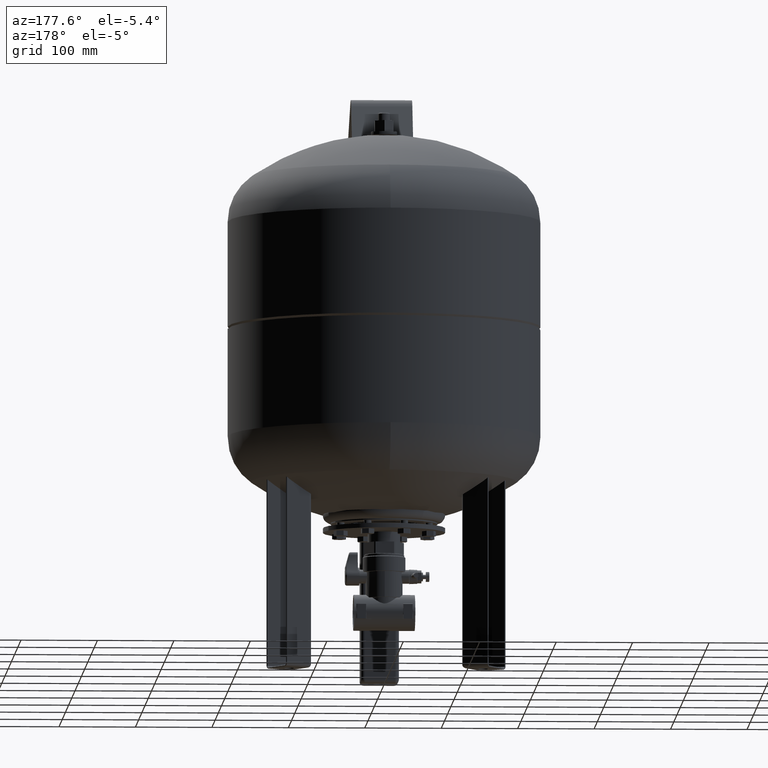
[diagram: clean part render]
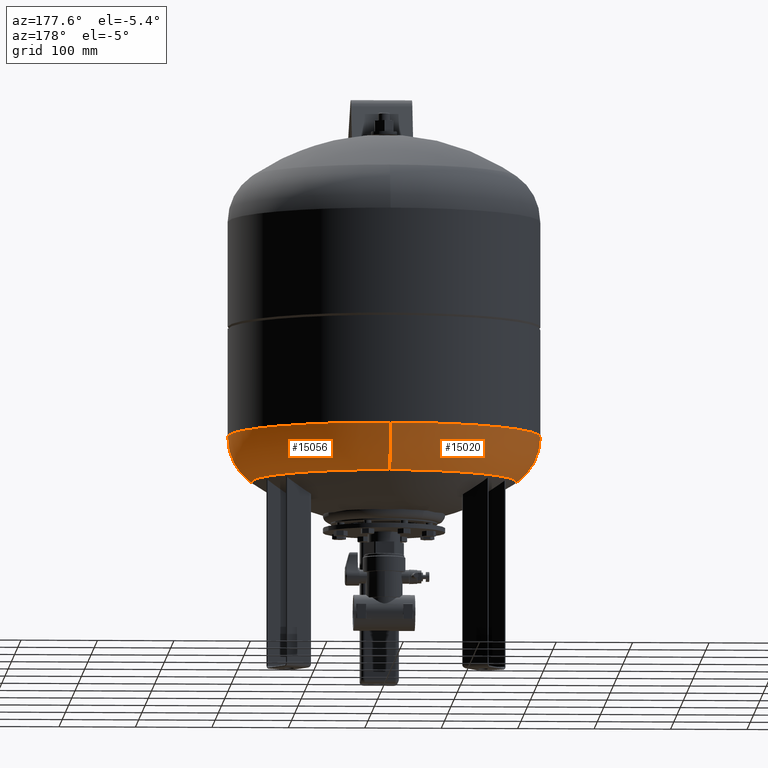
[diagram: same view with one multi-face feature highlighted, each face labeled with its STEP entity id]
A machine part, auxiliary view. The highlighted faces form ONE feature: a constant-radius fillet chain: 2 tangent blend faces with common blend radius 72.5 mm. The faces share edges in the B-rep.
Their STEP definitions:
[1] entity #15020 (Torus):
#14925=CARTESIAN_POINT('',(-204.500000000000000,1.562778E-016,311.149263340968050));
#14926=VERTEX_POINT('',#14925);
#14950=CARTESIAN_POINT('',(-2.097077E-014,204.500000000000000,311.149263340968100));
#14951=VERTEX_POINT('',#14950);
#14959=CARTESIAN_POINT('',(3.012668E-017,1.562778E-016,311.149263340968050));
#14960=DIRECTION('',(0.0,0.0,1.0));
#14961=DIRECTION('',(-1.0,0.0,0.0));
#14962=AXIS2_PLACEMENT_3D('',#14959,#14960,#14961);
#14963=CIRCLE('',#14962,204.500000000000000);
#14964=EDGE_CURVE('',#14951,#14926,#14963,.T.);
#14969=CARTESIAN_POINT('',(4.072433E-015,1.562778E-016,311.149263340968100));
#14970=DIRECTION('',(-3.541246E-017,-1.836970E-016,1.0));
#14971=DIRECTION('',(0.0,-1.0,0.0));
#14972=AXIS2_PLACEMENT_3D('',#14969,#14970,#14971);
#14973=TOROIDAL_SURFACE('',#14972,132.000000000000060,72.500000000000000);
#14974=CARTESIAN_POINT('',(4.072433E-015,-204.500000000000000,311.149263340967990));
#14975=VERTEX_POINT('',#14974);
#14976=CARTESIAN_POINT('',(6.174921E-015,-173.608695652173960,251.777835481055830));
#14977=VERTEX_POINT('',#14976);
#14978=CARTESIAN_POINT('',(4.072433E-015,-132.000000000000060,311.149263340968050));
#14979=DIRECTION('',(1.0,0.0,0.0));
#14980=DIRECTION('',(0.0,-1.0,0.0));
#14981=AXIS2_PLACEMENT_3D('',#14978,#14979,#14980);
#14982=CIRCLE('',#14981,72.500000000000000);
#14983=EDGE_CURVE('',#14975,#14977,#14982,.T.);
#14984=ORIENTED_EDGE('',*,*,#14983,.F.);
#14985=CARTESIAN_POINT('',(3.012668E-017,1.562778E-016,311.149263340968050));
#14986=DIRECTION('',(0.0,0.0,1.0));
#14987=DIRECTION('',(-1.0,0.0,0.0));
#14988=AXIS2_PLACEMENT_3D('',#14985,#14986,#14987);
#14989=CIRCLE('',#14988,204.500000000000000);
#14990=EDGE_CURVE('',#14926,#14975,#14989,.T.);
#14991=ORIENTED_EDGE('',*,*,#14990,.F.);
#14992=ORIENTED_EDGE('',*,*,#14964,.F.);
#14993=CARTESIAN_POINT('',(-1.508531E-014,173.608695652173960,251.777835481055920));
#14994=VERTEX_POINT('',#14993);
#14995=CARTESIAN_POINT('',(-1.209237E-014,132.000000000000060,311.149263340968160));
#14996=DIRECTION('',(-1.0,0.0,0.0));
#14997=DIRECTION('',(0.0,1.0,0.0));
#14998=AXIS2_PLACEMENT_3D('',#14995,#14996,#14997);
#14999=CIRCLE('',#14998,72.500000000000000);
#15000=EDGE_CURVE('',#14951,#14994,#14999,.T.);
#15001=ORIENTED_EDGE('',*,*,#15000,.T.);
#15002=CARTESIAN_POINT('',(-173.608695652173960,1.106263E-014,251.777835481055830));
#15003=VERTEX_POINT('',#15002);
#15004=CARTESIAN_POINT('',(2.132615E-015,1.106263E-014,251.777835481055860));
#15005=DIRECTION('',(0.0,0.0,1.0));
#15006=DIRECTION('',(-1.0,0.0,0.0));
#15007=AXIS2_PLACEMENT_3D('',#15004,#15005,#15006);
#15008=CIRCLE('',#15007,173.608695652173960);
#15009=EDGE_CURVE('',#14994,#15003,#15008,.T.);
#15010=ORIENTED_EDGE('',*,*,#15009,.T.);
#15011=CARTESIAN_POINT('',(2.132615E-015,1.106263E-014,251.777835481055860));
#15012=DIRECTION('',(0.0,0.0,1.0));
#15013=DIRECTION('',(-1.0,0.0,0.0));
#15014=AXIS2_PLACEMENT_3D('',#15011,#15012,#15013);
#15015=CIRCLE('',#15014,173.608695652173960);
#15016=EDGE_CURVE('',#15003,#14977,#15015,.T.);
#15017=ORIENTED_EDGE('',*,*,#15016,.T.);
#15018=EDGE_LOOP('',(#14984,#14991,#14992,#15001,#15010,#15017));
#15019=FACE_OUTER_BOUND('',#15018,.T.);
#15020=ADVANCED_FACE('',(#15019),#14973,.T.);
[2] entity #15056 (Torus):
#14942=CARTESIAN_POINT('',(204.500000000000030,2.519948E-014,311.149263340968050));
#14943=VERTEX_POINT('',#14942);
#14950=CARTESIAN_POINT('',(-2.097077E-014,204.500000000000000,311.149263340968100));
#14951=VERTEX_POINT('',#14950);
#14952=CARTESIAN_POINT('',(3.012668E-017,1.562778E-016,311.149263340968050));
#14953=DIRECTION('',(0.0,0.0,1.0));
#14954=DIRECTION('',(-1.0,0.0,0.0));
#14955=AXIS2_PLACEMENT_3D('',#14952,#14953,#14954);
#14956=CIRCLE('',#14955,204.500000000000000);
#14957=EDGE_CURVE('',#14943,#14951,#14956,.T.);
#14974=CARTESIAN_POINT('',(4.072433E-015,-204.500000000000000,311.149263340967990));
#14975=VERTEX_POINT('',#14974);
#14976=CARTESIAN_POINT('',(6.174921E-015,-173.608695652173960,251.777835481055830));
#14977=VERTEX_POINT('',#14976);
#14978=CARTESIAN_POINT('',(4.072433E-015,-132.000000000000060,311.149263340968050));
#14979=DIRECTION('',(1.0,0.0,0.0));
#14980=DIRECTION('',(0.0,-1.0,0.0));
#14981=AXIS2_PLACEMENT_3D('',#14978,#14979,#14980);
#14982=CIRCLE('',#14981,72.500000000000000);
#14983=EDGE_CURVE('',#14975,#14977,#14982,.T.);
#14993=CARTESIAN_POINT('',(-1.508531E-014,173.608695652173960,251.777835481055920));
#14994=VERTEX_POINT('',#14993);
#14995=CARTESIAN_POINT('',(-1.209237E-014,132.000000000000060,311.149263340968160));
#14996=DIRECTION('',(-1.0,0.0,0.0));
#14997=DIRECTION('',(0.0,1.0,0.0));
#14998=AXIS2_PLACEMENT_3D('',#14995,#14996,#14997);
#14999=CIRCLE('',#14998,72.500000000000000);
#15000=EDGE_CURVE('',#14951,#14994,#14999,.T.);
#15028=CARTESIAN_POINT('',(2.132615E-015,1.106263E-014,251.777835481055860));
#15029=DIRECTION('',(0.0,0.0,1.0));
#15030=DIRECTION('',(-1.0,0.0,0.0));
#15031=AXIS2_PLACEMENT_3D('',#15028,#15029,#15030);
#15032=CIRCLE('',#15031,173.608695652173960);
#15033=EDGE_CURVE('',#14977,#14994,#15032,.T.);
#15038=CARTESIAN_POINT('',(4.072433E-015,1.562778E-016,311.149263340968100));
#15039=DIRECTION('',(-3.541246E-017,-1.836970E-016,1.0));
#15040=DIRECTION('',(0.0,-1.0,0.0));
#15041=AXIS2_PLACEMENT_3D('',#15038,#15039,#15040);
#15042=TOROIDAL_SURFACE('',#15041,132.000000000000060,72.500000000000000);
#15043=ORIENTED_EDGE('',*,*,#14983,.T.);
#15044=ORIENTED_EDGE('',*,*,#15033,.T.);
#15045=ORIENTED_EDGE('',*,*,#15000,.F.);
#15046=ORIENTED_EDGE('',*,*,#14957,.F.);
#15047=CARTESIAN_POINT('',(3.012668E-017,1.562778E-016,311.149263340968050));
#15048=DIRECTION('',(0.0,0.0,1.0));
#15049=DIRECTION('',(-1.0,0.0,0.0));
#15050=AXIS2_PLACEMENT_3D('',#15047,#15048,#15049);
#15051=CIRCLE('',#15050,204.500000000000000);
#15052=EDGE_CURVE('',#14975,#14943,#15051,.T.);
#15053=ORIENTED_EDGE('',*,*,#15052,.F.);
#15054=EDGE_LOOP('',(#15043,#15044,#15045,#15046,#15053));
#15055=FACE_OUTER_BOUND('',#15054,.T.);
#15056=ADVANCED_FACE('',(#15055),#15042,.T.);